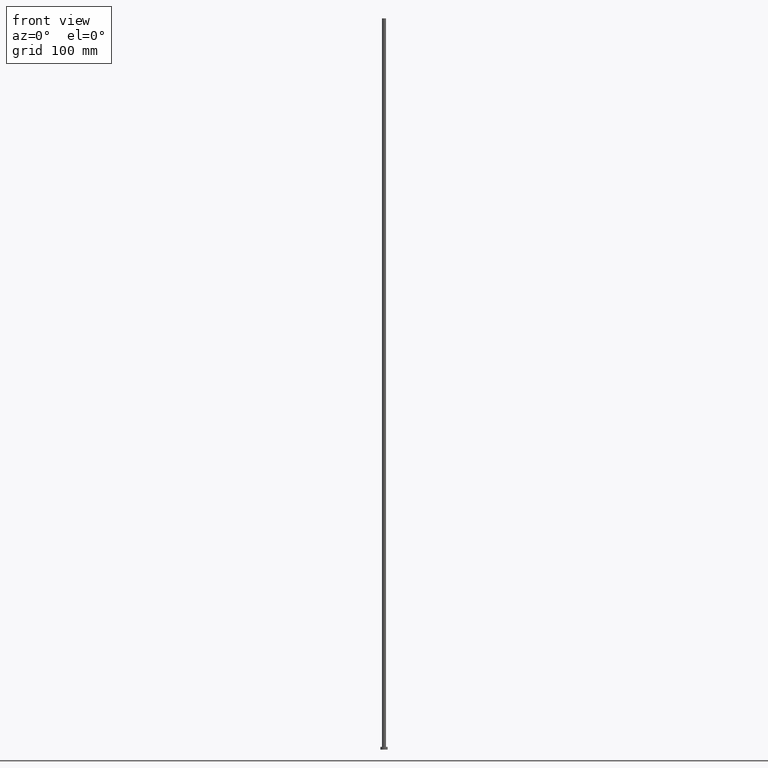
[diagram: clean part render]
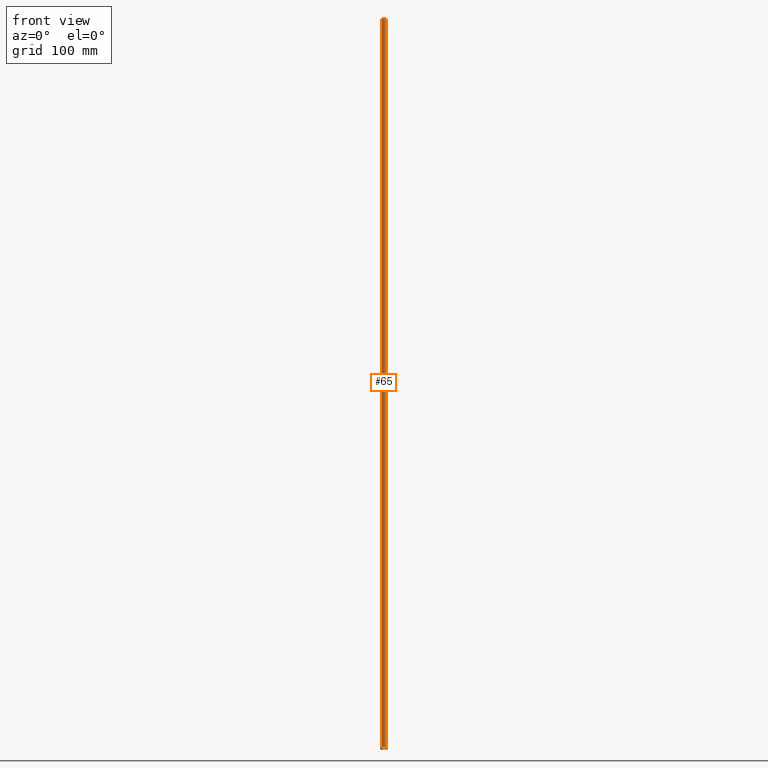
[diagram: same view with one face highlighted and labeled with its STEP entity id]
A machine part, front view. The second image highlights one B-rep face of the part: STEP entity #65.
In plain terms, the highlighted cylindrical surface (edge-blend (fillet) strip) has radius 2.25 mm, axis along (-0, -0, -1).
Its self-contained STEP definition (entity closure, byte-faithful):
#4 = CARTESIAN_POINT ( 'NONE',  ( 2.250000000000000000, 2.755455298081544285E-16, 800.0000000000000000 ) ) ;
#6 = DIRECTION ( 'NONE',  ( 0.000000000000000000, 0.000000000000000000, 1.000000000000000000 ) ) ;
#7 = CIRCLE ( 'NONE', #174, 2.250000000000000000 ) ;
#14 = CARTESIAN_POINT ( 'NONE',  ( 2.250000000000000000, 2.755455298081544285E-16, 800.0000000000000000 ) ) ;
#20 = CARTESIAN_POINT ( 'NONE',  ( 0.000000000000000000, 0.000000000000000000, 800.0000000000000000 ) ) ;
#25 = VECTOR ( 'NONE', #223, 1000.000000000000000 ) ;
#35 = VERTEX_POINT ( 'NONE', #14 ) ;
#36 = CYLINDRICAL_SURFACE ( 'NONE', #169, 2.250000000000000000 ) ;
#42 = LINE ( 'NONE', #123, #25 ) ;
#48 = DIRECTION ( 'NONE',  ( -1.000000000000000000, 0.000000000000000000, 0.000000000000000000 ) ) ;
#50 = DIRECTION ( 'NONE',  ( 1.000000000000000000, 0.000000000000000000, 0.000000000000000000 ) ) ;
#54 = CIRCLE ( 'NONE', #199, 2.250000000000000000 ) ;
#65 = ADVANCED_FACE ( 'NONE', ( #101 ), #36, .T. ) ;
#68 = ORIENTED_EDGE ( 'NONE', *, *, #117, .F. ) ;
#82 = DIRECTION ( 'NONE',  ( -0.000000000000000000, -0.000000000000000000, -1.000000000000000000 ) ) ;
#89 = EDGE_LOOP ( 'NONE', ( #68, #219, #222, #197 ) ) ;
#101 = FACE_OUTER_BOUND ( 'NONE', #89, .T. ) ;
#117 = EDGE_CURVE ( 'NONE', #35, #151, #144, .T. ) ;
#118 = VERTEX_POINT ( 'NONE', #120 ) ;
#119 = CARTESIAN_POINT ( 'NONE',  ( 0.000000000000000000, 0.000000000000000000, 3.000000000000000000 ) ) ;
#120 = CARTESIAN_POINT ( 'NONE',  ( -2.250000000000000000, 0.000000000000000000, 3.000000000000000000 ) ) ;
#123 = CARTESIAN_POINT ( 'NONE',  ( -2.250000000000000000, 0.000000000000000000, 800.0000000000000000 ) ) ;
#137 = DIRECTION ( 'NONE',  ( -0.000000000000000000, -0.000000000000000000, -1.000000000000000000 ) ) ;
#144 = LINE ( 'NONE', #4, #162 ) ;
#151 = VERTEX_POINT ( 'NONE', #181 ) ;
#162 = VECTOR ( 'NONE', #82, 1000.000000000000000 ) ;
#164 = EDGE_CURVE ( 'NONE', #218, #118, #42, .T. ) ;
#169 = AXIS2_PLACEMENT_3D ( 'NONE', #20, #137, #48 ) ;
#174 = AXIS2_PLACEMENT_3D ( 'NONE', #119, #210, #190 ) ;
#181 = CARTESIAN_POINT ( 'NONE',  ( 2.250000000000000000, 2.755455298081544285E-16, 3.000000000000000000 ) ) ;
#190 = DIRECTION ( 'NONE',  ( 1.000000000000000000, 0.000000000000000000, 0.000000000000000000 ) ) ;
#197 = ORIENTED_EDGE ( 'NONE', *, *, #214, .T. ) ;
#199 = AXIS2_PLACEMENT_3D ( 'NONE', #226, #6, #50 ) ;
#210 = DIRECTION ( 'NONE',  ( 0.000000000000000000, 0.000000000000000000, 1.000000000000000000 ) ) ;
#214 = EDGE_CURVE ( 'NONE', #118, #151, #7, .T. ) ;
#218 = VERTEX_POINT ( 'NONE', #247 ) ;
#219 = ORIENTED_EDGE ( 'NONE', *, *, #227, .F. ) ;
#222 = ORIENTED_EDGE ( 'NONE', *, *, #164, .T. ) ;
#223 = DIRECTION ( 'NONE',  ( -0.000000000000000000, -0.000000000000000000, -1.000000000000000000 ) ) ;
#226 = CARTESIAN_POINT ( 'NONE',  ( 0.000000000000000000, 0.000000000000000000, 800.0000000000000000 ) ) ;
#227 = EDGE_CURVE ( 'NONE', #218, #35, #54, .T. ) ;
#247 = CARTESIAN_POINT ( 'NONE',  ( -2.250000000000000000, 0.000000000000000000, 800.0000000000000000 ) ) ;